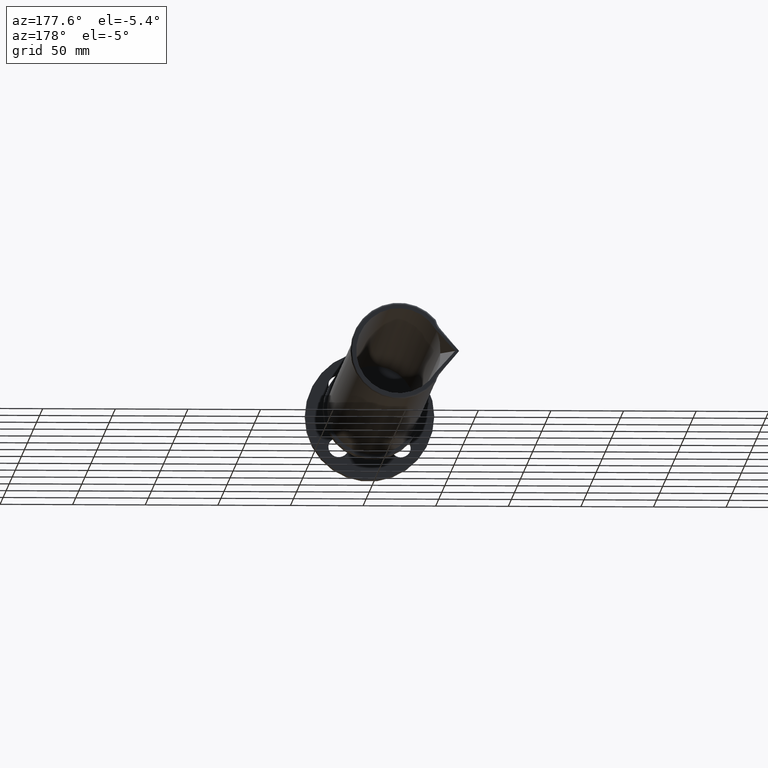
[diagram: clean part render]
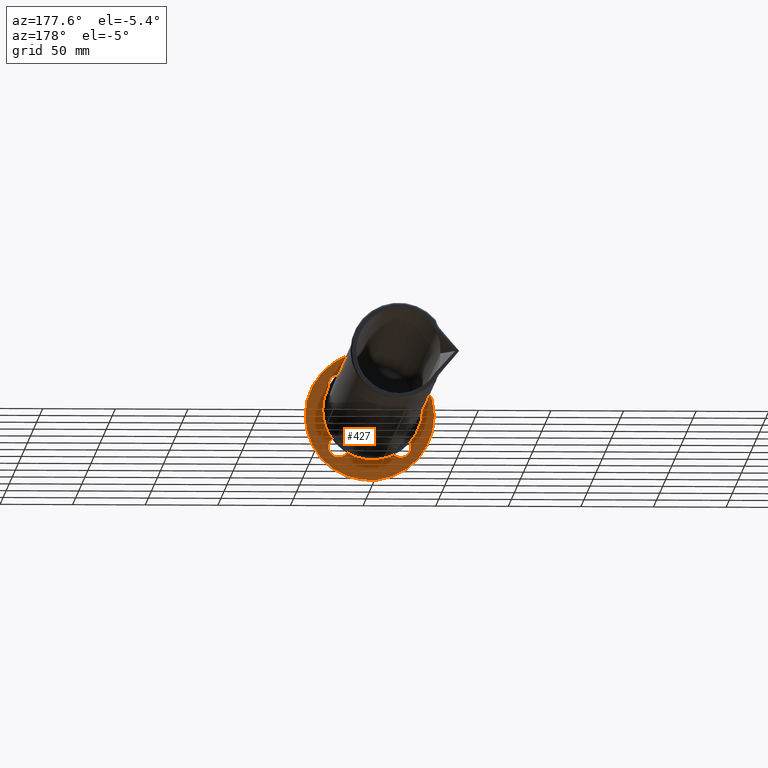
[diagram: same view with one face highlighted and labeled with its STEP entity id]
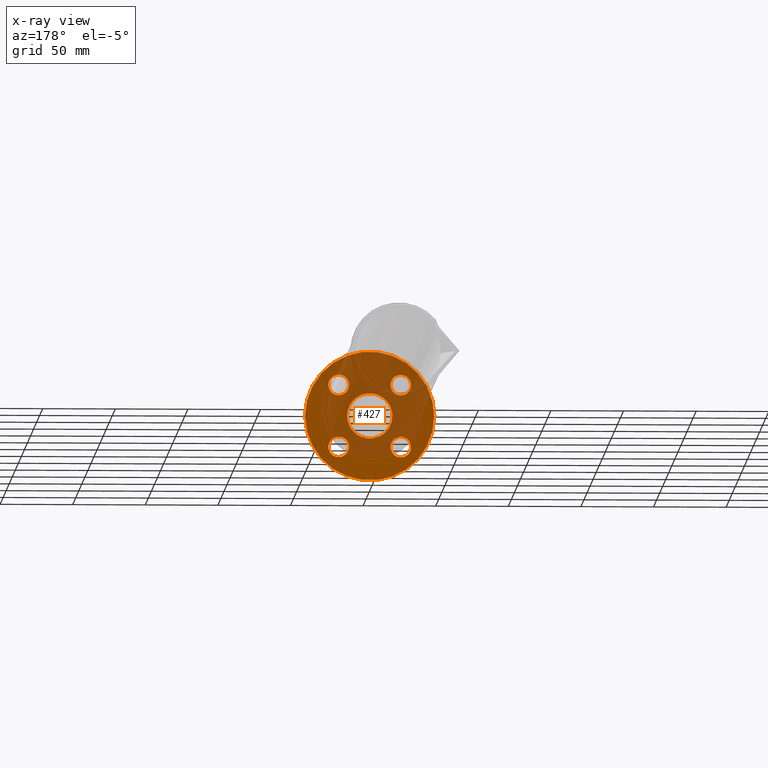
[diagram: x-ray of the same camera — body ghosted, the highlighted face saturated]
A machine part, auxiliary view. The second image highlights one B-rep face of the part: STEP entity #427.
The next image is the same camera in x-ray: the body ghosted, the highlighted face saturated — about 61% of this face is hidden behind the body in this view.
In plain terms, the highlighted planar face has unit normal (0, 1, 0).
Its self-contained STEP definition (entity closure, byte-faithful):
#169=CARTESIAN_POINT('',(-0.841457069611991,0.365000000000000,-0.561457069611992));
#170=VERTEX_POINT('',#169);
#171=CARTESIAN_POINT('',(-0.841457069611991,0.365000000000000,-0.841457069611992));
#172=DIRECTION('',(0.0,-1.0,0.0));
#173=DIRECTION('',(0.0,0.0,-1.0));
#174=AXIS2_PLACEMENT_3D('',#171,#172,#173);
#175=CIRCLE('',#174,0.280000000000000);
#176=EDGE_CURVE('',#170,#170,#175,.T.);
#197=CARTESIAN_POINT('',(0.561457069611992,0.365000000000000,-0.841457069611991));
#198=VERTEX_POINT('',#197);
#199=CARTESIAN_POINT('',(0.841457069611991,0.365000000000000,-0.841457069611991));
#200=DIRECTION('',(0.0,-1.0,0.0));
#201=DIRECTION('',(1.0,0.0,0.0));
#202=AXIS2_PLACEMENT_3D('',#199,#200,#201);
#203=CIRCLE('',#202,0.280000000000000);
#204=EDGE_CURVE('',#198,#198,#203,.T.);
#225=CARTESIAN_POINT('',(0.841457069611991,0.365000000000000,0.561457069611991));
#226=VERTEX_POINT('',#225);
#227=CARTESIAN_POINT('',(0.841457069611991,0.365000000000000,0.841457069611991));
#228=DIRECTION('',(0.0,-1.0,0.0));
#229=DIRECTION('',(0.0,0.0,1.0));
#230=AXIS2_PLACEMENT_3D('',#227,#228,#229);
#231=CIRCLE('',#230,0.280000000000000);
#232=EDGE_CURVE('',#226,#226,#231,.T.);
#253=CARTESIAN_POINT('',(-0.561457069611991,0.365000000000000,0.841457069611991));
#254=VERTEX_POINT('',#253);
#255=CARTESIAN_POINT('',(-0.841457069611991,0.365000000000000,0.841457069611991));
#256=DIRECTION('',(0.0,-1.0,0.0));
#257=DIRECTION('',(-1.0,0.0,0.0));
#258=AXIS2_PLACEMENT_3D('',#255,#256,#257);
#259=CIRCLE('',#258,0.280000000000000);
#260=EDGE_CURVE('',#254,#254,#259,.T.);
#381=CARTESIAN_POINT('',(-1.750000000000000,0.365000000000000,0.0));
#382=VERTEX_POINT('',#381);
#383=CARTESIAN_POINT('',(0.0,0.365000000000000,0.0));
#384=DIRECTION('',(0.0,1.0,0.0));
#385=DIRECTION('',(-1.0,0.0,0.0));
#386=AXIS2_PLACEMENT_3D('',#383,#384,#385);
#387=CIRCLE('',#386,1.750000000000000);
#388=EDGE_CURVE('',#382,#382,#387,.T.);
#396=CARTESIAN_POINT('',(-1.182500000000000,0.365000000000000,0.0));
#397=DIRECTION('',(0.0,1.0,0.0));
#398=DIRECTION('',(0.0,0.0,1.0));
#399=AXIS2_PLACEMENT_3D('',#396,#397,#398);
#400=PLANE('',#399);
#401=ORIENTED_EDGE('',*,*,#388,.T.);
#402=EDGE_LOOP('',(#401));
#403=FACE_OUTER_BOUND('',#402,.T.);
#404=ORIENTED_EDGE('',*,*,#176,.T.);
#405=EDGE_LOOP('',(#404));
#406=FACE_BOUND('',#405,.T.);
#407=ORIENTED_EDGE('',*,*,#204,.T.);
#408=EDGE_LOOP('',(#407));
#409=FACE_BOUND('',#408,.T.);
#410=ORIENTED_EDGE('',*,*,#232,.T.);
#411=EDGE_LOOP('',(#410));
#412=FACE_BOUND('',#411,.T.);
#413=ORIENTED_EDGE('',*,*,#260,.T.);
#414=EDGE_LOOP('',(#413));
#415=FACE_BOUND('',#414,.T.);
#416=CARTESIAN_POINT('',(-0.615000000000000,0.365000000000000,0.0));
#417=VERTEX_POINT('',#416);
#418=CARTESIAN_POINT('',(0.0,0.365000000000000,0.0));
#419=DIRECTION('',(0.0,1.0,0.0));
#420=DIRECTION('',(-1.0,0.0,0.0));
#421=AXIS2_PLACEMENT_3D('',#418,#419,#420);
#422=CIRCLE('',#421,0.615000000000000);
#423=EDGE_CURVE('',#417,#417,#422,.T.);
#424=ORIENTED_EDGE('',*,*,#423,.F.);
#425=EDGE_LOOP('',(#424));
#426=FACE_BOUND('',#425,.T.);
#427=ADVANCED_FACE('',(#403,#406,#409,#412,#415,#426),#400,.T.);